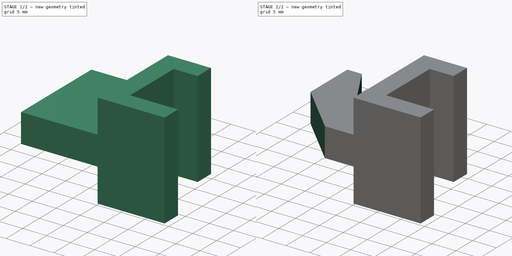
[diagram: build sequence overview — one tinted view per stage of 2, left to right]
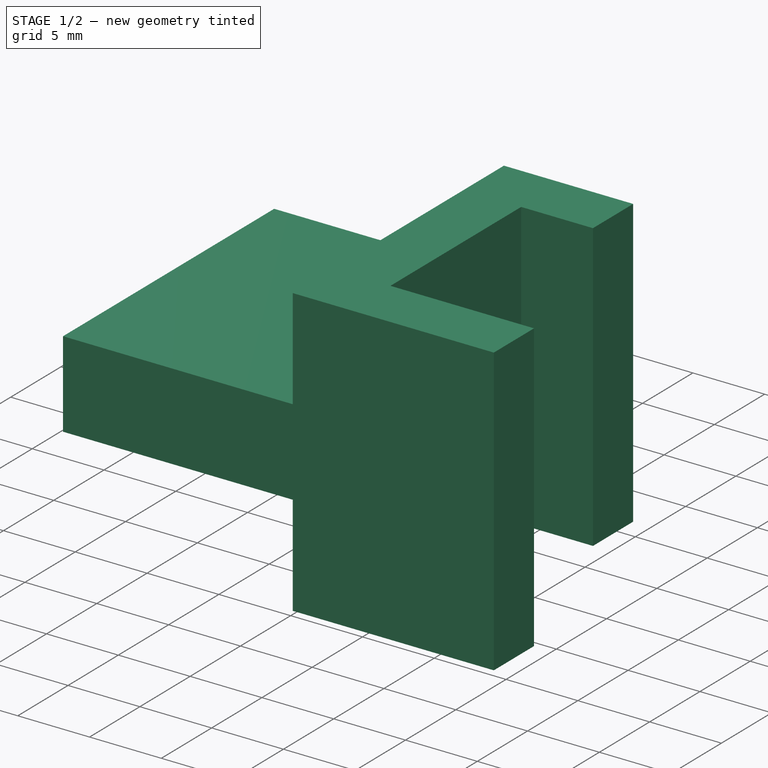
[diagram: stage 1 of 2 — iso view after this stage's code; geometry added in this stage tinted green]
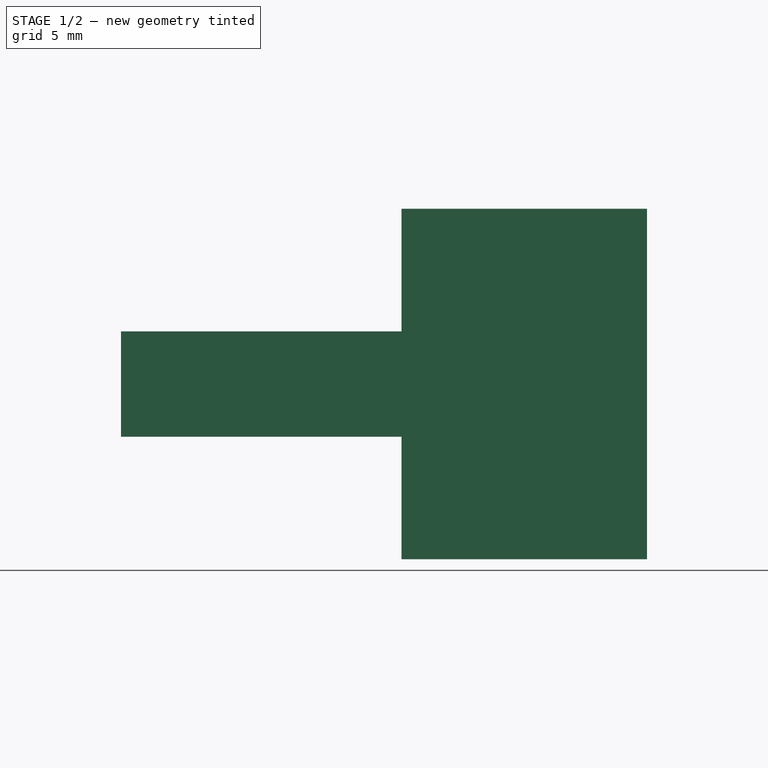
[diagram: stage 1 of 2 — front view after this stage's code; geometry added in this stage tinted green]
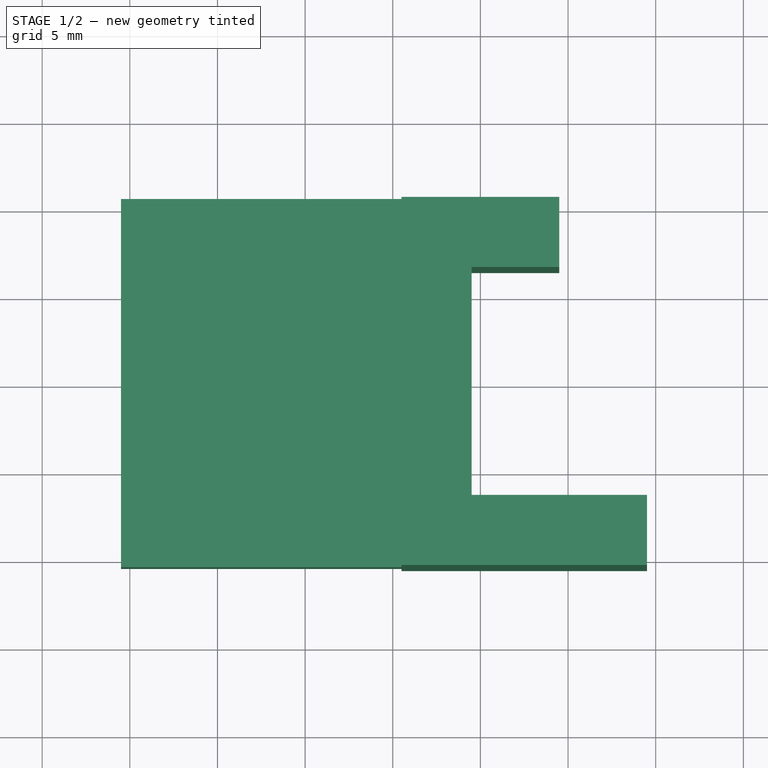
[diagram: stage 1 of 2 — top view after this stage's code; geometry added in this stage tinted green]
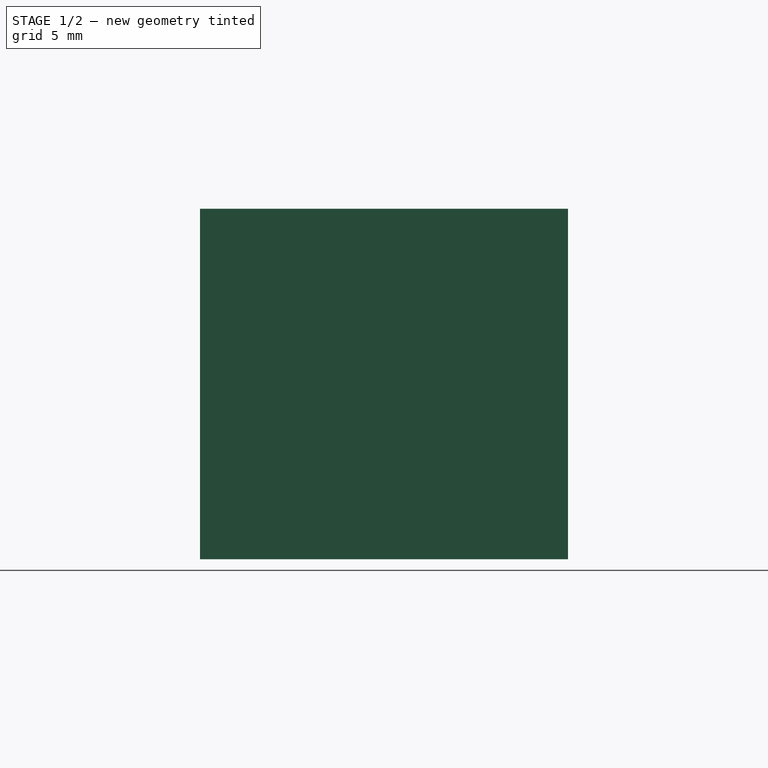
[diagram: stage 1 of 2 — right view after this stage's code; geometry added in this stage tinted green]
FCSTD DOCUMENT  (FreeCAD 0.17R13634 (Git))
Label: ElasticAnchor V1
License: All rights reserved
LicenseURL: http://en.wikipedia.org/wiki/All_rights_reserved
objects: Sketcher::SketchObject×3, PartDesign::Pad×2, PartDesign::Pocket×1, PartDesign::Chamfer×1, PartDesign::Body×1
note: 11 computed .brp shape members not serialized (recipe doc carries the construction recipe); baked Part::Feature solids carry a one-line shape summary decoded from their .brp

FEATURE [Sketcher::SketchObject] Sketch  label="UProfile"
  MapMode = 5
  Support = -> [XY_Plane]
  sketch-geometry (8):
    g0: LineSegment StartX=4.5 StartY=6.5 StartZ=0 EndX=4.5 EndY=10.5 EndZ=0
    g1: LineSegment StartX=4.5 StartY=10.5 StartZ=0 EndX=-4.5 EndY=10.5 EndZ=0
    g2: LineSegment StartX=-4.5 StartY=10.5 StartZ=0 EndX=-4.5 EndY=-10.5 EndZ=0
    g3: LineSegment StartX=-4.5 StartY=-10.5 StartZ=0 EndX=9.5 EndY=-10.5 EndZ=0
    g4: LineSegment StartX=9.5 StartY=-10.5 StartZ=0 EndX=9.5 EndY=-6.5 EndZ=0
    g5: LineSegment StartX=9.5 StartY=-6.5 StartZ=0 EndX=-0.5 EndY=-6.5 EndZ=0
    g6: LineSegment StartX=-0.5 StartY=-6.5 StartZ=0 EndX=-0.5 EndY=6.5 EndZ=0
    g7: LineSegment StartX=-0.5 StartY=6.5 StartZ=0 EndX=4.5 EndY=6.5 EndZ=0
  constraints (24):
    c: Vertical(g0)
    c: Coincident(g0,g1)
    c: Horizontal(g1)
    c: Coincident(g1,g2)
    c: Vertical(g2)
    c: Coincident(g2,g3)
    c: Horizontal(g3)
    c: Coincident(g3,g4)
    c: Vertical(g4)
    c: Coincident(g4,g5)
    c: Horizontal(g5)
    c: Coincident(g5,g6)
    c: Vertical(g6)
    c: Coincident(g6,g7)
    c: Coincident(g7,g0)
    c: Horizontal(g7)
    c: Symmetric(g0,g1,g-2)
    c: Symmetric(g2,g1,g-1)
    c: Symmetric(g5,g6,g-1)
    c: Distance(g6) = 13
    c: Distance(g4) = 4
    c: Distance(g7) = 5
    c: Distance(g5) = 10
    c: DistanceX(g1,g6) = 4
FEATURE [PartDesign::Pad] Pad
  Length = 20
  Length2 = 100
  Profile = -> Sketch
  Type = 0
FEATURE [Sketcher::SketchObject] Sketch001  label="AnchorBase"
  ExternalGeometry = -> [Pad]
  MapMode = 5
  Placement = pos=(-4.5,0,0) rot=(0.57735,-0.57735,-0.57735;2.0944rad)
  Support = -> [Pad]
  sketch-geometry (6):
    g0: LineSegment StartX=-10.5 StartY=13.0056 StartZ=0 EndX=10.5 EndY=13.0056 EndZ=0
    g1: LineSegment StartX=10.5 StartY=13.0056 StartZ=0 EndX=10.5 EndY=6.99437 EndZ=0
    g2: LineSegment StartX=10.5 StartY=6.99437 StartZ=0 EndX=-10.5 EndY=6.99437 EndZ=0
    g3: LineSegment StartX=-10.5 StartY=6.99437 StartZ=0 EndX=-10.5 EndY=13.0056 EndZ=0
    g4: LineSegment [constr] StartX=10.5 StartY=13.0056 StartZ=0 EndX=-10.5 EndY=0 EndZ=0
    g5: LineSegment [constr] StartX=10.5 StartY=6.99437 StartZ=0 EndX=-10.5 EndY=20 EndZ=0
  constraints (15):
    c: Coincident(g0,g1)
    c: Coincident(g1,g2)
    c: Coincident(g2,g3)
    c: Coincident(g3,g0)
    c: Horizontal(g0)
    c: Horizontal(g2)
    c: Vertical(g1)
    c: Vertical(g3)
    c: PointOnObject(g0,g-4)
    c: PointOnObject(g1,g-3)
    c: Coincident(g4,g0)
    c: Coincident(g4,g-4)
    c: Coincident(g5,g1)
    c: Coincident(g5,g-4)
    c: Equal(g5,g4)
FEATURE [PartDesign::Pad] Pad001
  BaseFeature = -> Pad
  Length = 16
  Length2 = 100
  Profile = -> Sketch001
  Type = 0
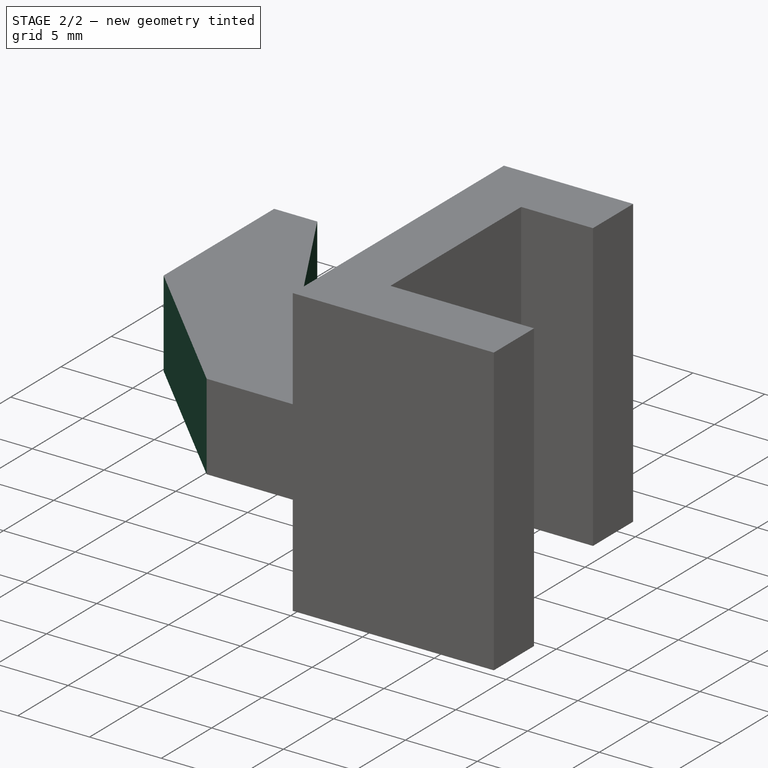
[diagram: stage 2 of 2 — iso view after this stage's code; geometry added in this stage tinted green]
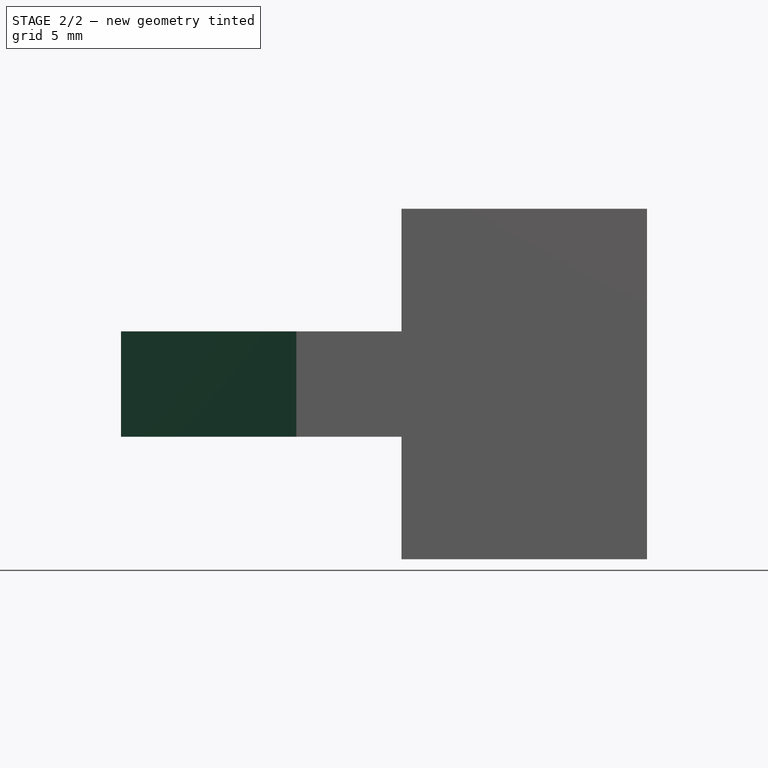
[diagram: stage 2 of 2 — front view after this stage's code; geometry added in this stage tinted green]
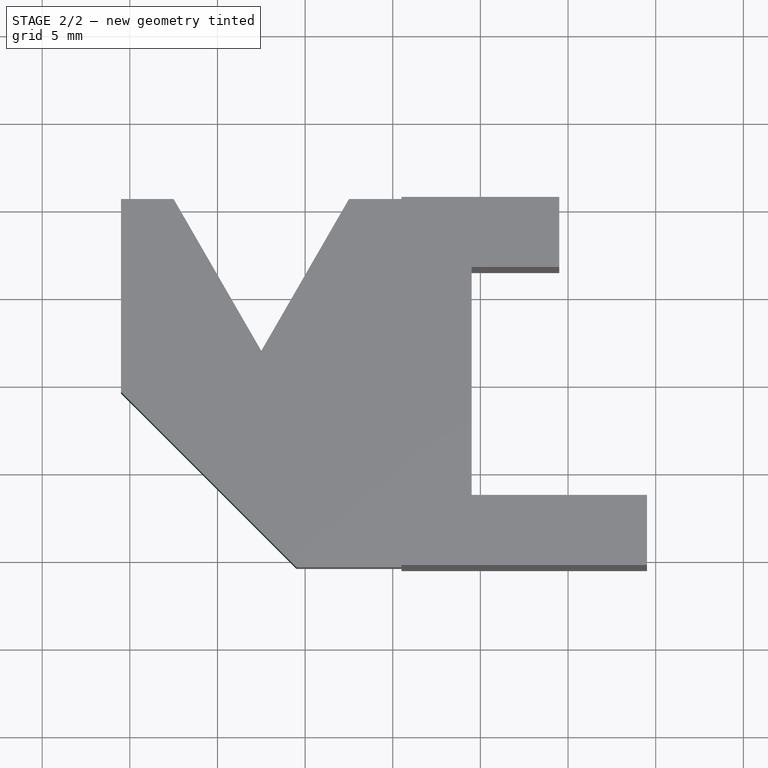
[diagram: stage 2 of 2 — top view after this stage's code; geometry added in this stage tinted green]
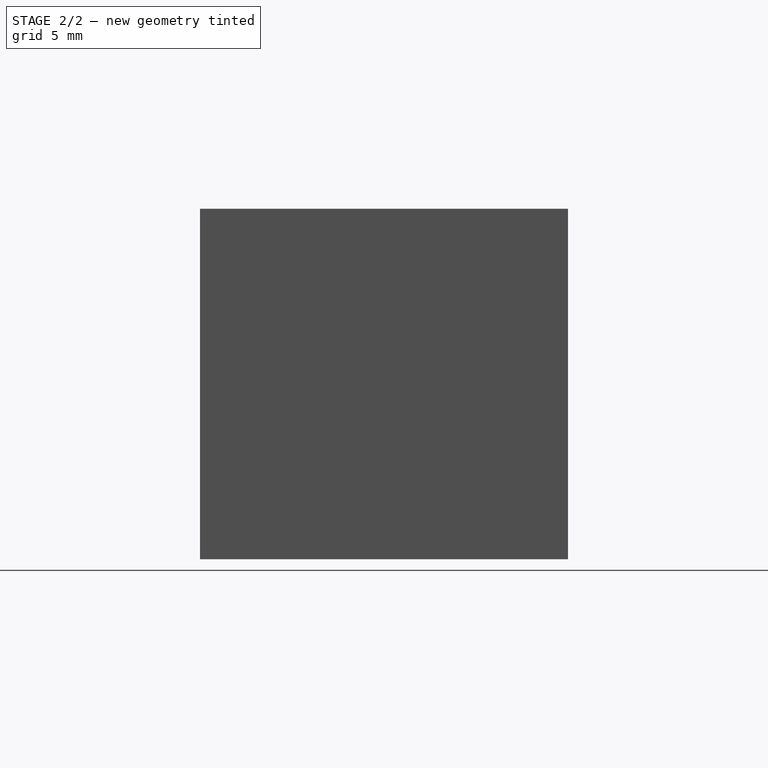
[diagram: stage 2 of 2 — right view after this stage's code; geometry added in this stage tinted green]
FEATURE [Sketcher::SketchObject] Sketch002  label="Notch"
  ExternalGeometry = -> [Pad001]
  MapMode = 5
  Placement = pos=(0,0,6.99437) rot=(1,0,0;3.14159rad)
  Support = -> [Pad001]
  sketch-geometry (7):
    g0: LineSegment StartX=-17.5 StartY=-10.5 StartZ=0 EndX=-12.5 EndY=-1.83975 EndZ=0
    g1: LineSegment StartX=-12.5 StartY=-1.83975 StartZ=0 EndX=-7.5 EndY=-10.5 EndZ=0
    g2: LineSegment [constr] StartX=-12.5 StartY=-1.83975 StartZ=0 EndX=-20.5 EndY=10.5 EndZ=0
    g3: LineSegment [constr] StartX=-12.5 StartY=-1.83975 StartZ=0 EndX=-4.5 EndY=10.5 EndZ=0
    g4: LineSegment StartX=-17.5 StartY=-10.5 StartZ=0 EndX=-17.5 EndY=-16.27 EndZ=0
    g5: LineSegment StartX=-17.5 StartY=-16.27 StartZ=0 EndX=-7.5 EndY=-16.27 EndZ=0
    g6: LineSegment StartX=-7.5 StartY=-16.27 StartZ=0 EndX=-7.5 EndY=-10.5 EndZ=0
  constraints (19):
    c: Coincident(g0,g1)
    c: Equal(g1,g0)
    c: Angle(g0,g1) = 1.0472
    c: Distance(g1) = 10
    c: Coincident(g2,g0)
    c: Coincident(g2,g-3)
    c: Coincident(g3,g0)
    c: Coincident(g3,g-3)
    c: Equal(g2,g3)
    c: Coincident(g0,g4)
    c: Vertical(g4)
    c: Coincident(g4,g5)
    c: Coincident(g5,g6)
    c: Coincident(g6,g1)
    c: PointOnObject(g1,g-4)
    c: PointOnObject(g0,g-4)
    c: Vertical(g6)
    c: Horizontal(g5)
    c: Distance(g6) = 5.77
FEATURE [PartDesign::Pocket] Pocket
  BaseFeature = -> Pad001
  Length = 5
  Length2 = 100
  Profile = -> Sketch002
  Type = 1
FEATURE [PartDesign::Chamfer] Chamfer
  Base = -> Pocket [Edge45]
  BaseFeature = -> Pocket
  Size = 10
FEATURE [PartDesign::Body] Body
  Group = -> [Sketch,Pad,Sketch001,Pad001,Sketch002,Pocket,Chamfer]
  Origin = -> Origin
  Tip = -> Chamfer
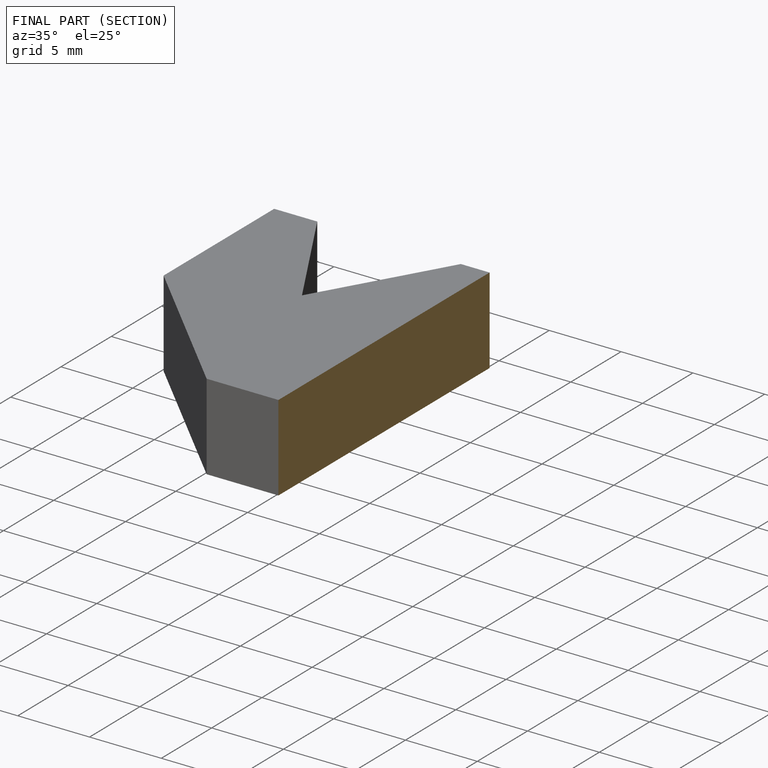
[diagram: finished part — half-section view (interior)]
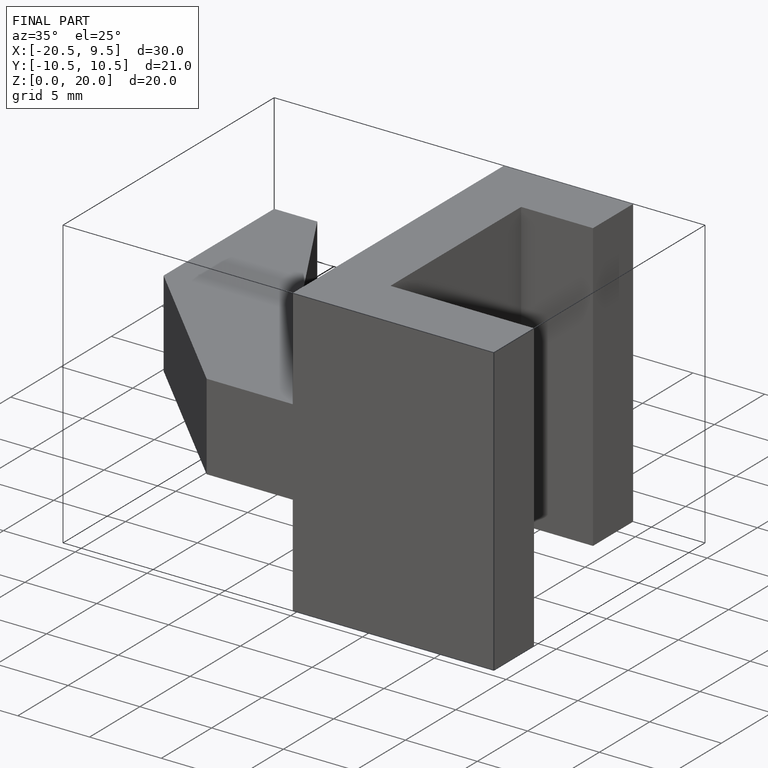
[diagram: finished part — iso view with bounding-box wireframe]
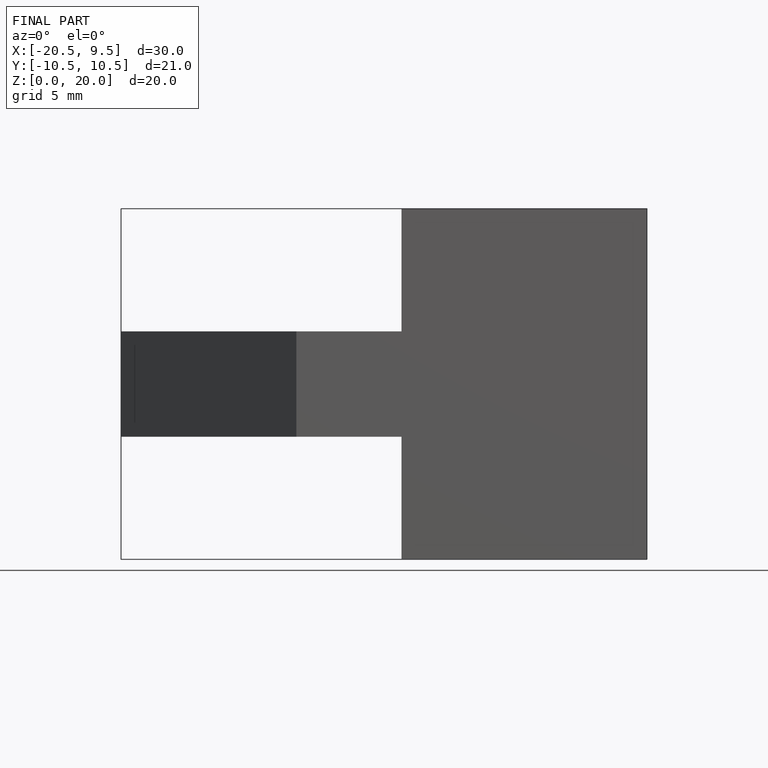
[diagram: finished part — front view with bounding-box wireframe]
